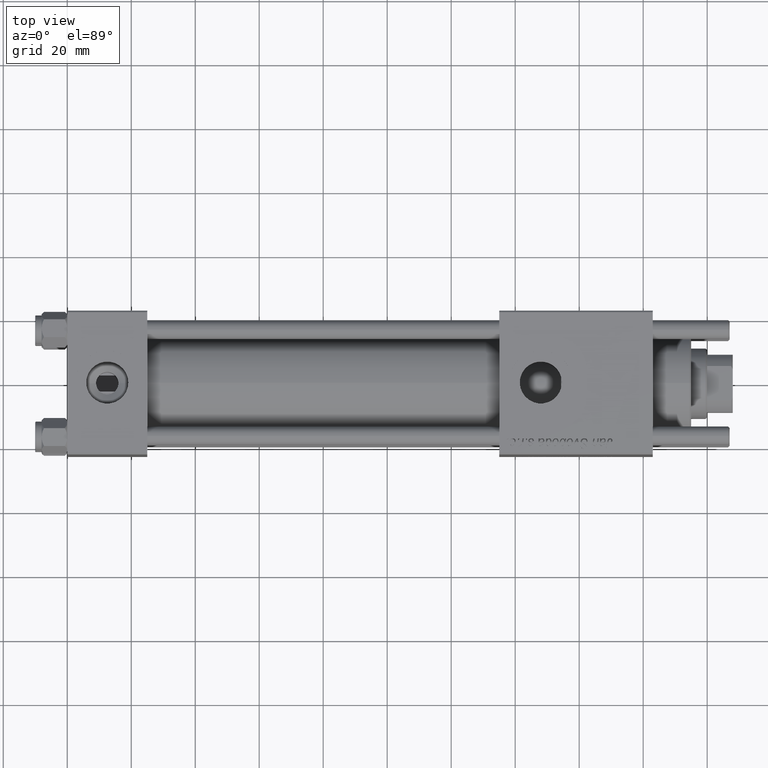
[diagram: clean part render]
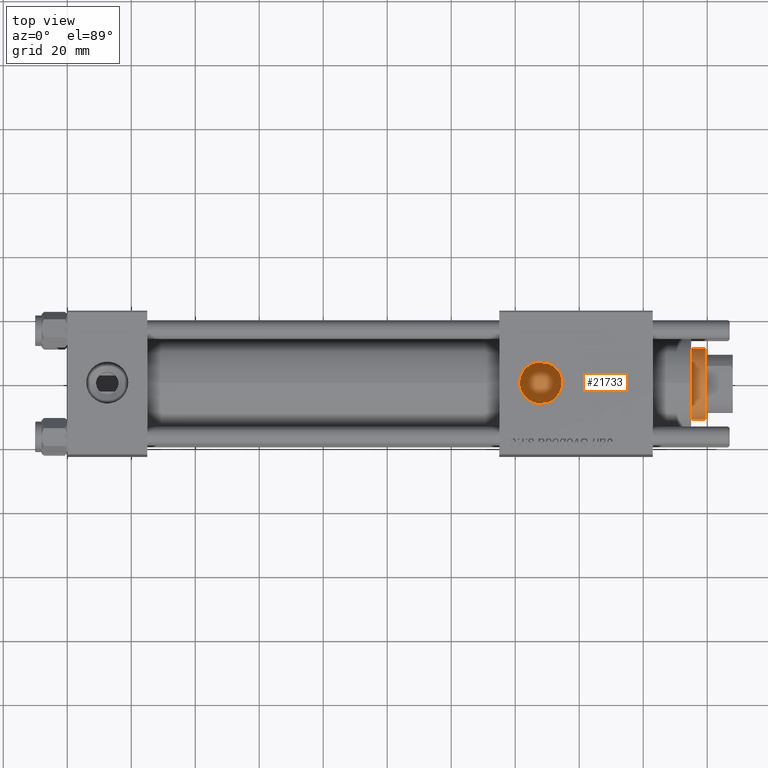
[diagram: same view with one face highlighted and labeled with its STEP entity id]
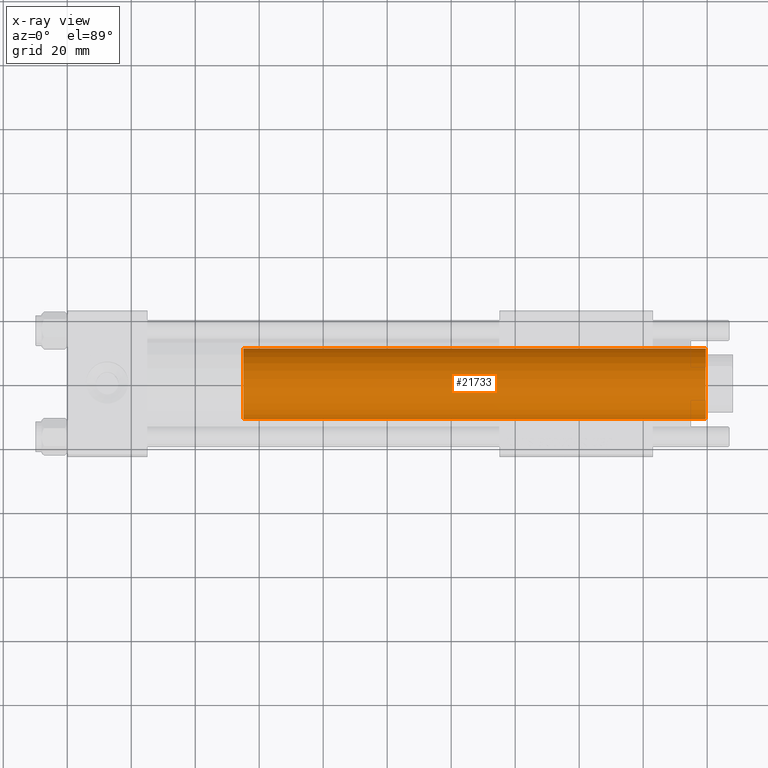
[diagram: x-ray of the same camera — body ghosted, the highlighted face saturated]
A machine part, top view. The second image highlights one B-rep face of the part: STEP entity #21733.
The next image is the same camera in x-ray: the body ghosted, the highlighted face saturated — about 0% of this face is hidden behind the body in this view.
In plain terms, the highlighted cylindrical surface (edge-blend (fillet) strip) has radius 11 mm, axis along (-1, 0, 0).
Its self-contained STEP definition (entity closure, byte-faithful):
#3122 = CYLINDRICAL_SURFACE ( 'NONE', #25421, 11.00000000000000000 ) ;
#4738 = CIRCLE ( 'NONE', #48380, 11.00000000000000000 ) ;
#4779 = ORIENTED_EDGE ( 'NONE', *, *, #12414, .T. ) ;
#6497 = LINE ( 'NONE', #11648, #16968 ) ;
#6523 = CARTESIAN_POINT ( 'NONE',  ( 0.000000000000000000, 0.000000000000000000, 174.5000000000000284 ) ) ;
#7508 = CARTESIAN_POINT ( 'NONE',  ( 0.000000000000000000, 0.000000000000000000, 30.00000000000000000 ) ) ;
#10005 = CARTESIAN_POINT ( 'NONE',  ( -11.00000000000000000, 0.000000000000000000, 174.5000000000000284 ) ) ;
#11082 = CARTESIAN_POINT ( 'NONE',  ( -11.00000000000000000, 0.000000000000000000, 30.00000000000000000 ) ) ;
#11648 = CARTESIAN_POINT ( 'NONE',  ( 11.00000000000000000, 1.347111479062088405E-15, 175.0000000000000000 ) ) ;
#12215 = CARTESIAN_POINT ( 'NONE',  ( 0.000000000000000000, 0.000000000000000000, 175.0000000000000000 ) ) ;
#12414 = EDGE_CURVE ( 'NONE', #22758, #46161, #36807, .T. ) ;
#16968 = VECTOR ( 'NONE', #38992, 1000.000000000000000 ) ;
#19267 = VERTEX_POINT ( 'NONE', #39401 ) ;
#21085 = DIRECTION ( 'NONE',  ( 0.000000000000000000, 0.000000000000000000, -1.000000000000000000 ) ) ;
#21733 = ADVANCED_FACE ( 'NONE', ( #40742 ), #3122, .T. ) ;
#22758 = VERTEX_POINT ( 'NONE', #10005 ) ;
#23572 = CARTESIAN_POINT ( 'NONE',  ( 11.00000000000000000, 1.347111479062088405E-15, 30.00000000000000000 ) ) ;
#25421 = AXIS2_PLACEMENT_3D ( 'NONE', #12215, #53813, #59251 ) ;
#26039 = DIRECTION ( 'NONE',  ( 0.000000000000000000, 0.000000000000000000, 1.000000000000000000 ) ) ;
#26245 = VECTOR ( 'NONE', #56529, 1000.000000000000000 ) ;
#26393 = EDGE_CURVE ( 'NONE', #19267, #52479, #6497, .T. ) ;
#30833 = ORIENTED_EDGE ( 'NONE', *, *, #32052, .T. ) ;
#31817 = ORIENTED_EDGE ( 'NONE', *, *, #26393, .F. ) ;
#32052 = EDGE_CURVE ( 'NONE', #46161, #52479, #4738, .T. ) ;
#34766 = DIRECTION ( 'NONE',  ( 1.000000000000000000, 0.000000000000000000, 0.000000000000000000 ) ) ;
#35455 = DIRECTION ( 'NONE',  ( 1.000000000000000000, 0.000000000000000000, 0.000000000000000000 ) ) ;
#36320 = AXIS2_PLACEMENT_3D ( 'NONE', #6523, #21085, #34766 ) ;
#36807 = LINE ( 'NONE', #37417, #26245 ) ;
#37417 = CARTESIAN_POINT ( 'NONE',  ( -11.00000000000000000, 0.000000000000000000, 175.0000000000000000 ) ) ;
#38992 = DIRECTION ( 'NONE',  ( -0.000000000000000000, -0.000000000000000000, -1.000000000000000000 ) ) ;
#39401 = CARTESIAN_POINT ( 'NONE',  ( 11.00000000000000000, 1.347111479062088405E-15, 174.5000000000000284 ) ) ;
#39790 = EDGE_LOOP ( 'NONE', ( #31817, #57467, #4779, #30833 ) ) ;
#40742 = FACE_OUTER_BOUND ( 'NONE', #39790, .T. ) ;
#46161 = VERTEX_POINT ( 'NONE', #11082 ) ;
#48380 = AXIS2_PLACEMENT_3D ( 'NONE', #7508, #26039, #35455 ) ;
#51995 = EDGE_CURVE ( 'NONE', #19267, #22758, #53742, .T. ) ;
#52479 = VERTEX_POINT ( 'NONE', #23572 ) ;
#53742 = CIRCLE ( 'NONE', #36320, 11.00000000000000000 ) ;
#53813 = DIRECTION ( 'NONE',  ( -0.000000000000000000, -0.000000000000000000, -1.000000000000000000 ) ) ;
#56529 = DIRECTION ( 'NONE',  ( -0.000000000000000000, -0.000000000000000000, -1.000000000000000000 ) ) ;
#57467 = ORIENTED_EDGE ( 'NONE', *, *, #51995, .T. ) ;
#59251 = DIRECTION ( 'NONE',  ( -1.000000000000000000, 0.000000000000000000, 0.000000000000000000 ) ) ;